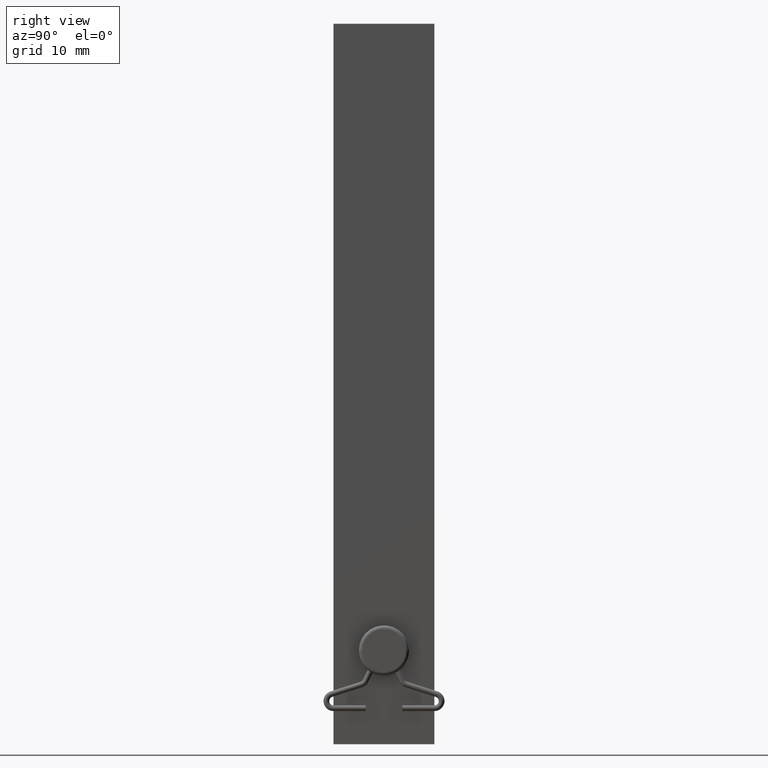
[diagram: clean part render]
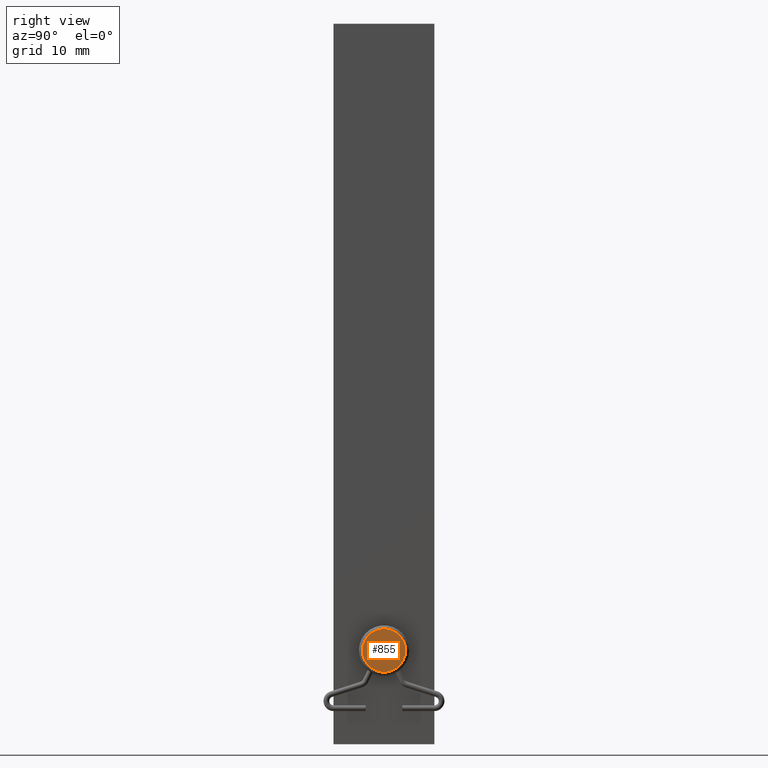
[diagram: same view with one face highlighted and labeled with its STEP entity id]
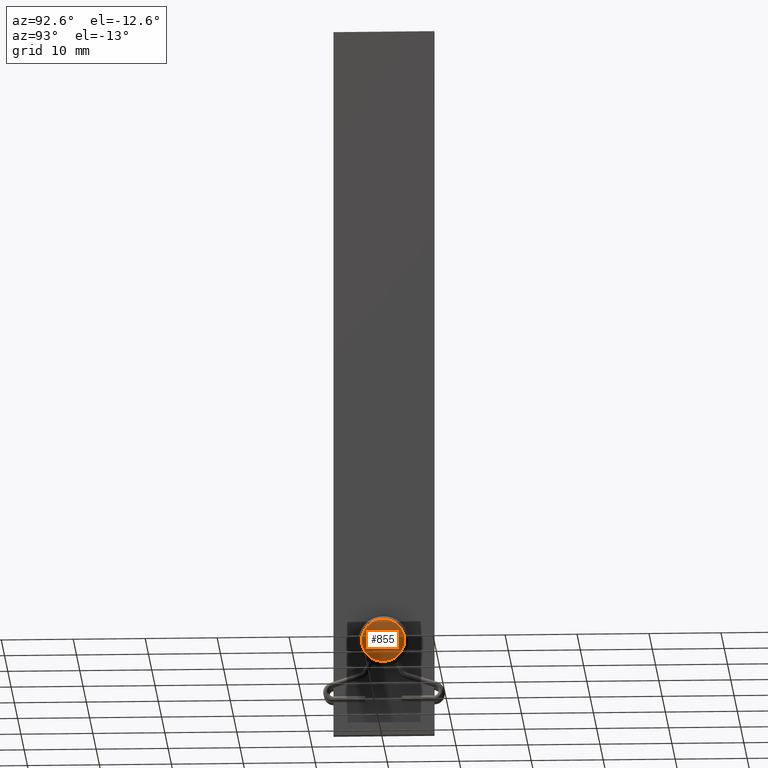
[diagram: same view with one face highlighted and labeled with its STEP entity id]
A machine part, right view. The second image highlights one B-rep face of the part: STEP entity #855.
A second angle (auxiliary view) of the same face is appended — the face is thin or edge-on in the first view.
In plain terms, the highlighted planar face has unit normal (1, 0, 0).
Its self-contained STEP definition (entity closure, byte-faithful):
#22 = CARTESIAN_POINT ( 'NONE',  ( 2.499999999999998668, 3.000000000000000888, 13.00000000000000000 ) ) ;
#259 = AXIS2_PLACEMENT_3D ( 'NONE', #2585, #423, #1699 ) ;
#423 = DIRECTION ( 'NONE',  ( 1.000000000000000000, 3.794707603699264533E-16, 0.000000000000000000 ) ) ;
#438 = AXIS2_PLACEMENT_3D ( 'NONE', #1854, #2817, #1624 ) ;
#622 = EDGE_LOOP ( 'NONE', ( #2002, #2198 ) ) ;
#855 = ADVANCED_FACE ( 'NONE', ( #2173 ), #1628, .T. ) ;
#1445 = VERTEX_POINT ( 'NONE', #2684 ) ;
#1492 = VERTEX_POINT ( 'NONE', #22 ) ;
#1624 = DIRECTION ( 'NONE',  ( -4.336808689942017736E-16, 1.000000000000000000, 0.000000000000000000 ) ) ;
#1628 = PLANE ( 'NONE',  #259 ) ;
#1636 = DIRECTION ( 'NONE',  ( 1.000000000000000000, 3.794707603699264533E-16, 0.000000000000000000 ) ) ;
#1699 = DIRECTION ( 'NONE',  ( -3.794707603699264533E-16, 1.000000000000000000, 0.000000000000000000 ) ) ;
#1783 = EDGE_CURVE ( 'NONE', #1492, #1445, #2152, .T. ) ;
#1854 = CARTESIAN_POINT ( 'NONE',  ( 2.500000000000000000, 9.486769009248163798E-16, 13.00000000000000000 ) ) ;
#1868 = DIRECTION ( 'NONE',  ( -4.336808689942017736E-16, 1.000000000000000000, 0.000000000000000000 ) ) ;
#1965 = CIRCLE ( 'NONE', #2673, 3.000000000000000000 ) ;
#2002 = ORIENTED_EDGE ( 'NONE', *, *, #1783, .T. ) ;
#2133 = CARTESIAN_POINT ( 'NONE',  ( 2.500000000000000000, 9.486769009248163798E-16, 13.00000000000000000 ) ) ;
#2152 = CIRCLE ( 'NONE', #438, 3.000000000000000000 ) ;
#2173 = FACE_OUTER_BOUND ( 'NONE', #622, .T. ) ;
#2198 = ORIENTED_EDGE ( 'NONE', *, *, #2394, .T. ) ;
#2394 = EDGE_CURVE ( 'NONE', #1445, #1492, #1965, .T. ) ;
#2585 = CARTESIAN_POINT ( 'NONE',  ( 2.500000000000000000, 9.486769009248163798E-16, 13.00000000000000000 ) ) ;
#2673 = AXIS2_PLACEMENT_3D ( 'NONE', #2133, #1636, #1868 ) ;
#2684 = CARTESIAN_POINT ( 'NONE',  ( 2.500000000000001332, -2.999999999999999112, 13.00000000000000000 ) ) ;
#2817 = DIRECTION ( 'NONE',  ( 1.000000000000000000, 3.794707603699264533E-16, 0.000000000000000000 ) ) ;